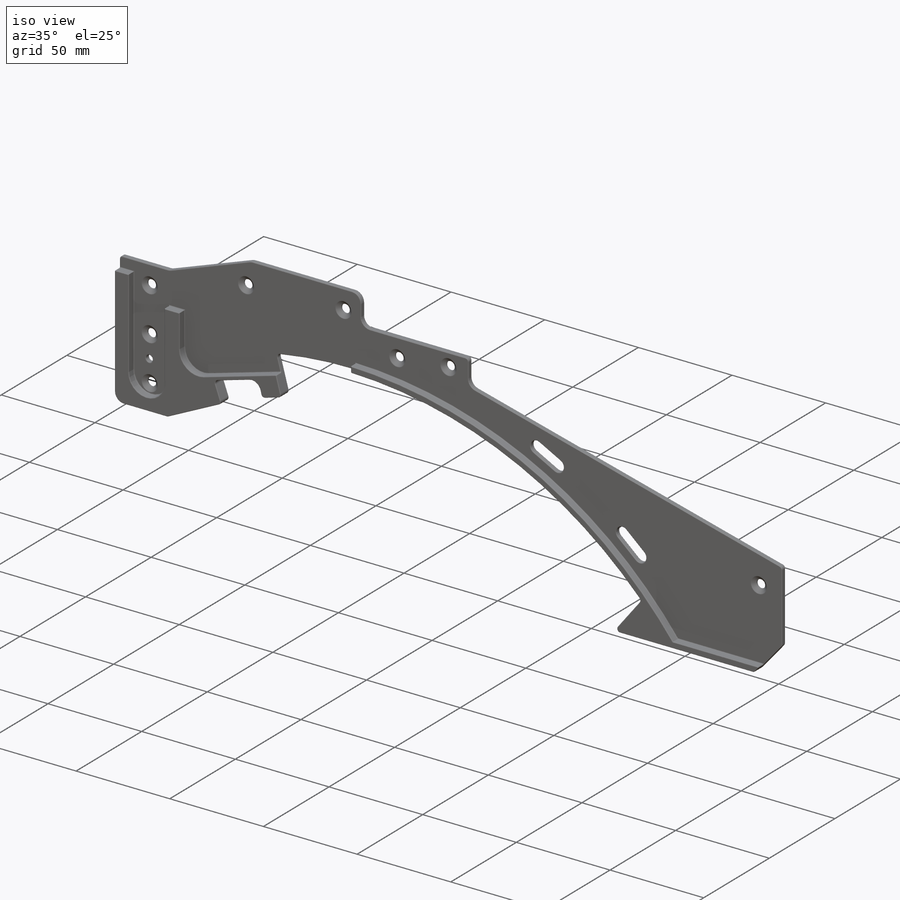
[diagram: iso view]
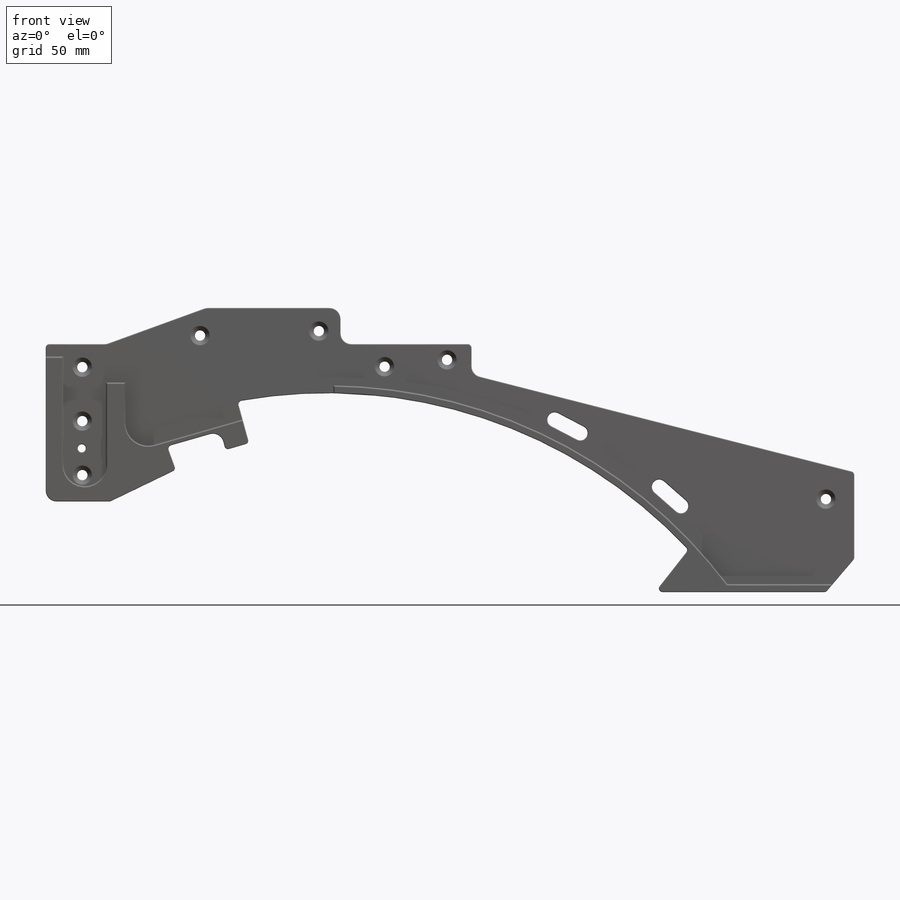
[diagram: front view]
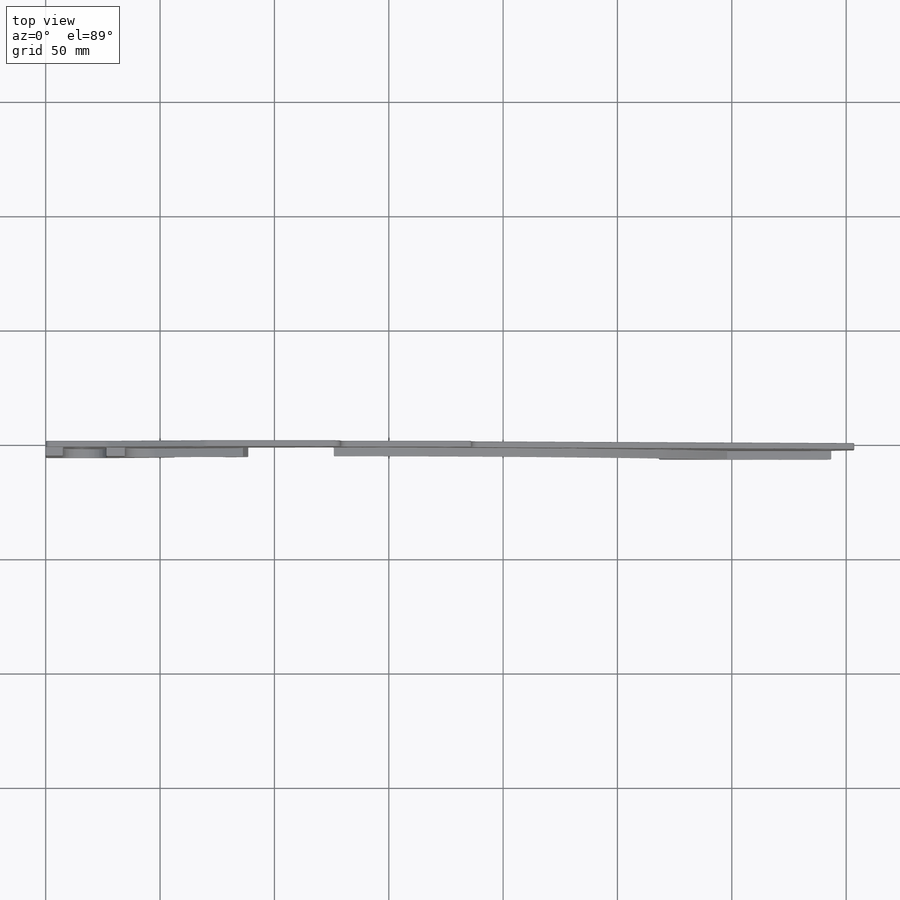
[diagram: top view]
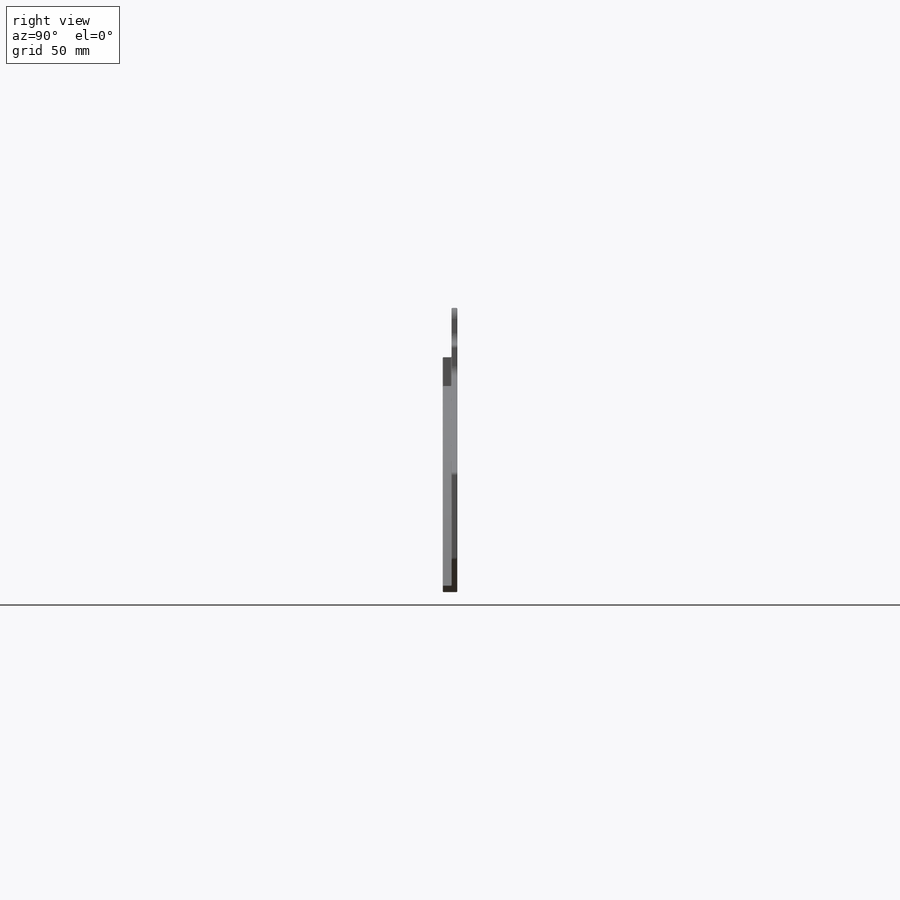
[diagram: right view]
SOLIDWORKS PART (.sldprt)
format: sldprt  version: not decoded by parser v0  size: 1,092,096 bytes
history: native  units: mm
features: sketch x8, fillet x3, extrude x2, hole x2, material x1, cut_extrude x1 (+16 scaffold rows collapsed)
feature tree (33):
  scaffold x16  (default folders/planes/origin — collapsed)
  material  "Material <not specified>"
  sketch  "Sketch1"  dims[D1=10.16mm D4=12.7mm D5=12.7mm D2=3.175mm D3=3.175mm]
  extrude  "Extrude1"  Depth=2.54mm
  sketch  "Sketch2"
  extrude  "Extrude2"  Depth=6.35mm
  sketch  "Sketch4"  dims[D1=3.175mm D2=3.175mm D3=3.175mm D4=3.175mm]
  cut_extrude  "Extrude6"  [1 undecoded]
  sketch  "Sketch6"
  hole  "CSK for #8 Flat Head Machine Screw (100)1"  Diameter=4.4958mm Depth=2.54mm
  sketch  "3DSketch3"
  sketch  "Sketch8"  dims[hole-wizard template sketch: 55 standard entries collapsed; hole parameters kept: c17.Thru Hole Depth=2.54mm c17.Near C'Sink Dia.=8.4328mm c17.D4=~3.666174mm c17.Near C'Sink Angle=100.0deg]
  hole  "Ø3.5 (3.5) Diameter Hole1"  Diameter=3.5mm Depth=2.54mm
  sketch  "3DSketch4"
  sketch  "Sketch10"  dims[hole-wizard template sketch: 60 standard entries collapsed; hole parameters kept: c18.Thru Hole Depth=2.54mm]
  fillet  "Fillet1"  Radius=4.7625mm
  fillet  "Fillet2"  Radius=1.5875mm
  fillet  "Fillet3"  Radius=0.396875mm
decode coverage: 11 of 16 modeling features carry decoded parameters
note: ~ marks probable driven/reference dimensions
note: 1 parameter value undecoded
note: suppression state not decoded; provenance and decode notes live in map.json
